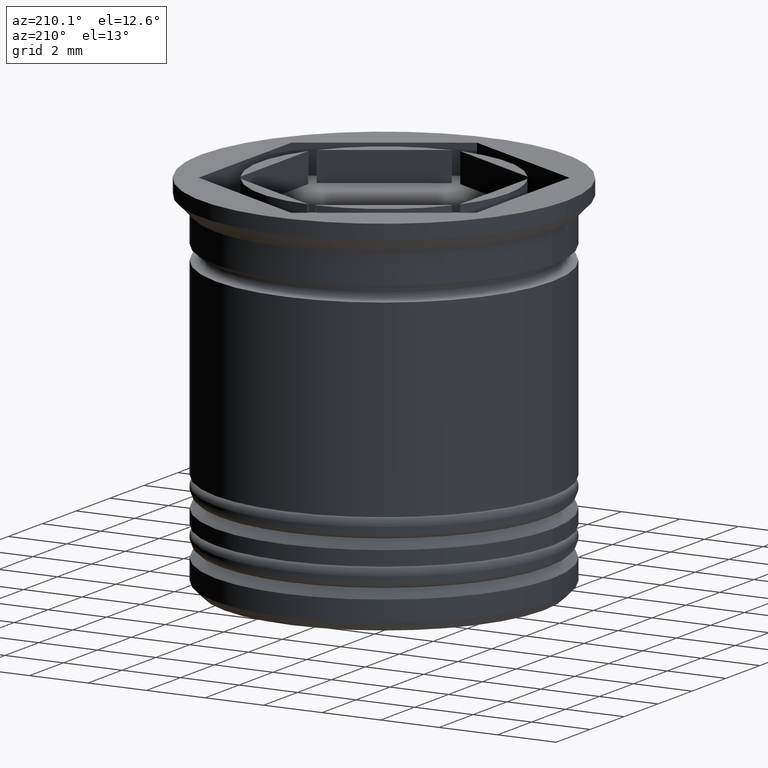
[diagram: clean part render]
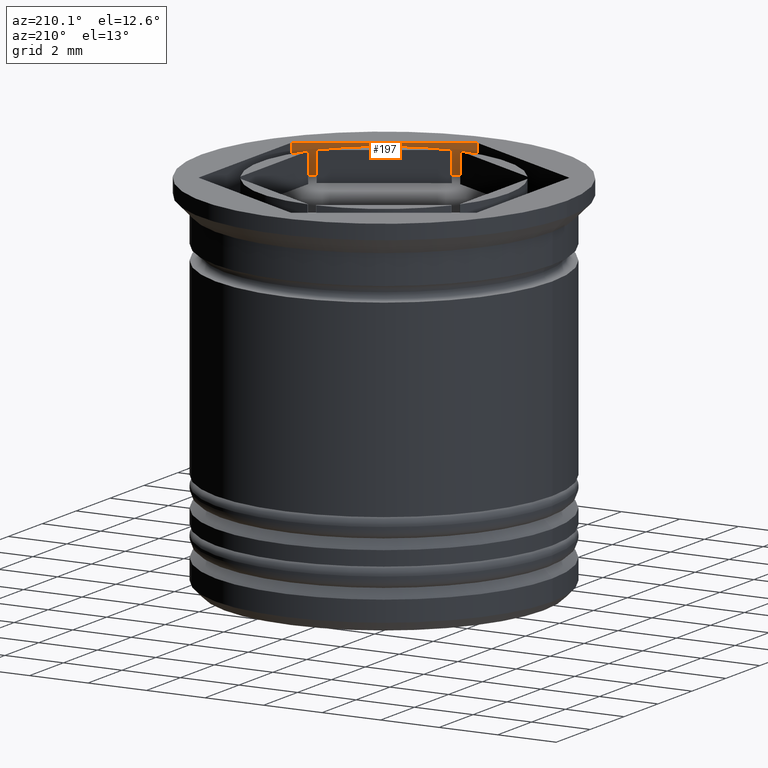
[diagram: same view with one face highlighted and labeled with its STEP entity id]
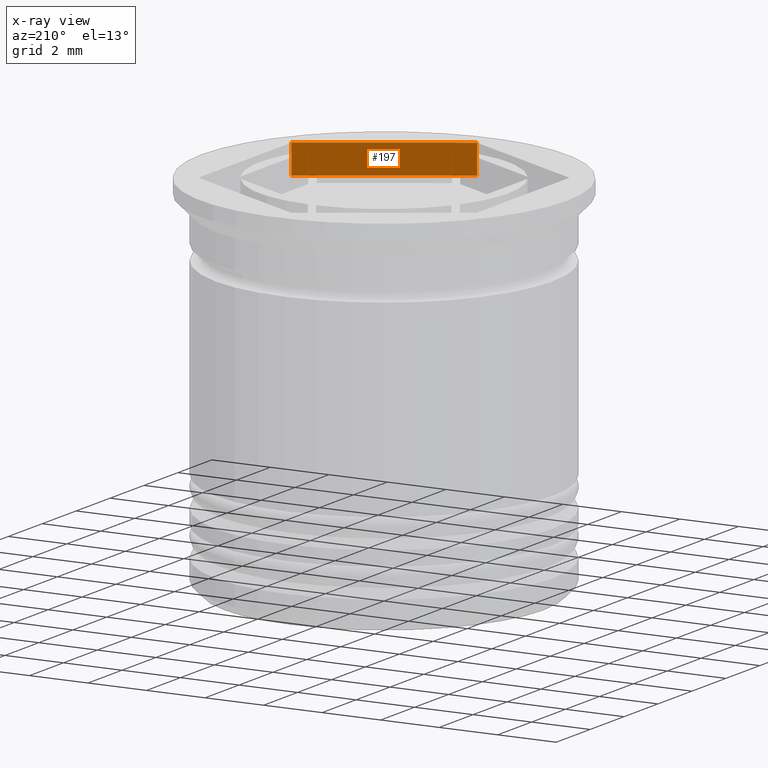
[diagram: x-ray of the same camera — body ghosted, the highlighted face saturated]
A machine part, auxiliary view. The second image highlights one B-rep face of the part: STEP entity #197.
The next image is the same camera in x-ray: the body ghosted, the highlighted face saturated — about 0% of this face is hidden behind the body in this view.
In plain terms, the highlighted planar face has unit normal (0.5, -0.866, 0).
Its self-contained STEP definition (entity closure, byte-faithful):
#138 = CARTESIAN_POINT ( 'NONE',  ( 3.997386383800531884E-16, -5.484827557301445999, -1.000000000000000000 ) ) ;
#197 = ADVANCED_FACE ( 'NONE', ( #1510 ), #1820, .F. ) ;
#238 = CARTESIAN_POINT ( 'NONE',  ( 3.997386383800531884E-16, -5.484827557301445999, -1.000000000000000000 ) ) ;
#297 = DIRECTION ( 'NONE',  ( -0.000000000000000000, -0.000000000000000000, 1.000000000000000000 ) ) ;
#400 = CARTESIAN_POINT ( 'NONE',  ( 3.997386383800531884E-16, -5.484827557301445999, 0.000000000000000000 ) ) ;
#501 = DIRECTION ( 'NONE',  ( 0.8660254037844385966, 0.5000000000000001110, 0.000000000000000000 ) ) ;
#506 = ORIENTED_EDGE ( 'NONE', *, *, #885, .F. ) ;
#516 = EDGE_CURVE ( 'NONE', #1672, #992, #1572, .T. ) ;
#565 = DIRECTION ( 'NONE',  ( 0.8660254037844385966, 0.5000000000000001110, 0.000000000000000000 ) ) ;
#605 = EDGE_CURVE ( 'NONE', #767, #1754, #1171, .T. ) ;
#650 = DIRECTION ( 'NONE',  ( -0.000000000000000000, -0.000000000000000000, 1.000000000000000000 ) ) ;
#662 = CARTESIAN_POINT ( 'NONE',  ( 3.997386383800531884E-16, -5.484827557301445999, 0.000000000000000000 ) ) ;
#761 = LINE ( 'NONE', #138, #936 ) ;
#767 = VERTEX_POINT ( 'NONE', #238 ) ;
#793 = VECTOR ( 'NONE', #1307, 1000.000000000000000 ) ;
#814 = VECTOR ( 'NONE', #650, 1000.000000000000000 ) ;
#866 = CARTESIAN_POINT ( 'NONE',  ( 3.997386383800531884E-16, -5.484827557301445999, -1.000000000000000000 ) ) ;
#885 = EDGE_CURVE ( 'NONE', #1754, #992, #1105, .T. ) ;
#895 = ORIENTED_EDGE ( 'NONE', *, *, #1321, .T. ) ;
#936 = VECTOR ( 'NONE', #297, 1000.000000000000000 ) ;
#992 = VERTEX_POINT ( 'NONE', #1916 ) ;
#1032 = CARTESIAN_POINT ( 'NONE',  ( 3.997386383800531884E-16, -5.484827557301445999, -1.000000000000000000 ) ) ;
#1105 = LINE ( 'NONE', #1849, #814 ) ;
#1149 = ORIENTED_EDGE ( 'NONE', *, *, #605, .F. ) ;
#1171 = LINE ( 'NONE', #866, #793 ) ;
#1307 = DIRECTION ( 'NONE',  ( 0.8660254037844385966, 0.5000000000000001110, 0.000000000000000000 ) ) ;
#1321 = EDGE_CURVE ( 'NONE', #767, #1672, #761, .T. ) ;
#1371 = DIRECTION ( 'NONE',  ( 0.5000000000000001110, -0.8660254037844385966, 0.000000000000000000 ) ) ;
#1376 = CARTESIAN_POINT ( 'NONE',  ( 4.750000000000000888, -2.742413778650722556, -1.000000000000000000 ) ) ;
#1434 = VECTOR ( 'NONE', #501, 1000.000000000000000 ) ;
#1445 = EDGE_LOOP ( 'NONE', ( #1852, #506, #1149, #895 ) ) ;
#1510 = FACE_OUTER_BOUND ( 'NONE', #1445, .T. ) ;
#1572 = LINE ( 'NONE', #662, #1434 ) ;
#1652 = AXIS2_PLACEMENT_3D ( 'NONE', #1032, #1371, #565 ) ;
#1672 = VERTEX_POINT ( 'NONE', #400 ) ;
#1754 = VERTEX_POINT ( 'NONE', #1376 ) ;
#1820 = PLANE ( 'NONE',  #1652 ) ;
#1849 = CARTESIAN_POINT ( 'NONE',  ( 4.750000000000000888, -2.742413778650722556, -1.000000000000000000 ) ) ;
#1852 = ORIENTED_EDGE ( 'NONE', *, *, #516, .T. ) ;
#1916 = CARTESIAN_POINT ( 'NONE',  ( 4.750000000000000888, -2.742413778650722556, 0.000000000000000000 ) ) ;